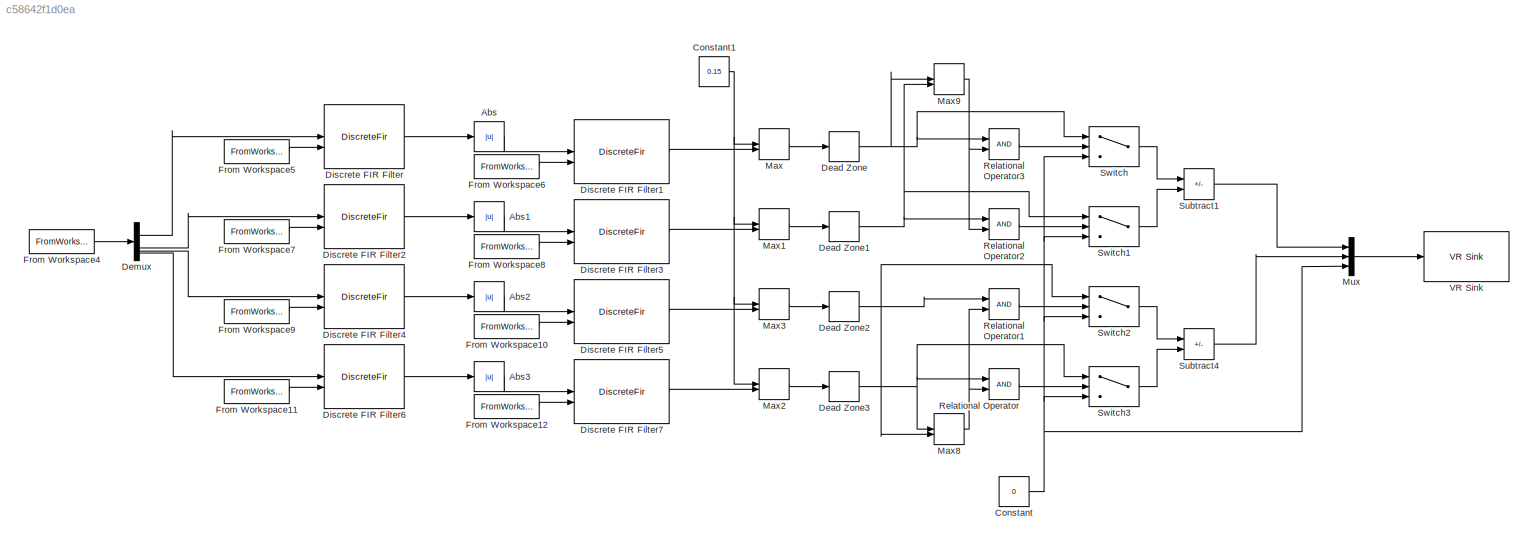
MODEL slx_c58642f1d0ea
KIND model
CONFIG AbsTol = auto
CONFIG EnableMultiTasking = off
CONFIG FixedStep = auto
CONFIG MaxStep = auto
CONFIG MinStep = auto
CONFIG RelTol = 1e-3
CONFIG SampleTimeConstraint = Unconstrained
CONFIG SolverName = VariableStepAuto
CONFIG StartTime = 0.0
CONFIG StopTime = 30
BLOCK [Abs] Abs
  SaturateOnIntegerOverflow = off
BLOCK [Abs] Abs1
  SaturateOnIntegerOverflow = off
BLOCK [Abs] Abs2
  SaturateOnIntegerOverflow = off
BLOCK [Abs] Abs3
  SaturateOnIntegerOverflow = off
BLOCK [Constant] Constant
  OutDataTypeStr = double
  Value = 0
BLOCK [Constant] Constant1
  Value = 0.15
BLOCK [DeadZone] Dead Zone
  LowerValue = -0.05
  UpperValue = 0.05
BLOCK [DeadZone] Dead Zone1
  LowerValue = -0.05
  UpperValue = 0.05
BLOCK [DeadZone] Dead Zone2
  LowerValue = -0.05
  UpperValue = 0.05
BLOCK [DeadZone] Dead Zone3
  LowerValue = -0.05
  UpperValue = 0.05
BLOCK [Demux] Demux
BLOCK [DiscreteFir] Discrete FIR Filter
  CloseFcn = dspblkCoreblockFVToolHelper(gcbh,'close');
  CoefSource = Input port
  CopyFcn = dspblkCoreblockFVToolHelper(gcbh,'copy');
  DeleteFcn = dspblkCoreblockFVToolHelper(gcbh,'close');
  InputPortMap = u0,u1
  LoadFcn = dspblkCoreblockFVToolHelper(gcbh,'load');
  ModelCloseFcn = dspblkCoreblockFVToolHelper(gcbh,'close');
  OutputPortMap = o0
  PostSaveFcn = dspblkCoreblockFVToolHelper(gcbh,'postsave');
  PreSaveFcn = dspblkCoreblockFVToolHelper(gcbh,'presave');
BLOCK [DiscreteFir] Discrete FIR Filter1
  CloseFcn = dspblkCoreblockFVToolHelper(gcbh,'close');
  CoefSource = Input port
  CopyFcn = dspblkCoreblockFVToolHelper(gcbh,'copy');
  DeleteFcn = dspblkCoreblockFVToolHelper(gcbh,'close');
  InputPortMap = u0,u1
  LoadFcn = dspblkCoreblockFVToolHelper(gcbh,'load');
  ModelCloseFcn = dspblkCoreblockFVToolHelper(gcbh,'close');
  OutputPortMap = o0
  PostSaveFcn = dspblkCoreblockFVToolHelper(gcbh,'postsave');
  PreSaveFcn = dspblkCoreblockFVToolHelper(gcbh,'presave');
BLOCK [DiscreteFir] Discrete FIR Filter2
  CloseFcn = dspblkCoreblockFVToolHelper(gcbh,'close');
  CoefSource = Input port
  CopyFcn = dspblkCoreblockFVToolHelper(gcbh,'copy');
  DeleteFcn = dspblkCoreblockFVToolHelper(gcbh,'close');
  InputPortMap = u0,u1
  LoadFcn = dspblkCoreblockFVToolHelper(gcbh,'load');
  ModelCloseFcn = dspblkCoreblockFVToolHelper(gcbh,'close');
  OutputPortMap = o0
  PostSaveFcn = dspblkCoreblockFVToolHelper(gcbh,'postsave');
  PreSaveFcn = dspblkCoreblockFVToolHelper(gcbh,'presave');
BLOCK [DiscreteFir] Discrete FIR Filter3
  CloseFcn = dspblkCoreblockFVToolHelper(gcbh,'close');
  CoefSource = Input port
  CopyFcn = dspblkCoreblockFVToolHelper(gcbh,'copy');
  DeleteFcn = dspblkCoreblockFVToolHelper(gcbh,'close');
  InputPortMap = u0,u1
  LoadFcn = dspblkCoreblockFVToolHelper(gcbh,'load');
  ModelCloseFcn = dspblkCoreblockFVToolHelper(gcbh,'close');
  OutputPortMap = o0
  PostSaveFcn = dspblkCoreblockFVToolHelper(gcbh,'postsave');
  PreSaveFcn = dspblkCoreblockFVToolHelper(gcbh,'presave');
BLOCK [DiscreteFir] Discrete FIR Filter4
  CloseFcn = dspblkCoreblockFVToolHelper(gcbh,'close');
  CoefSource = Input port
  CopyFcn = dspblkCoreblockFVToolHelper(gcbh,'copy');
  DeleteFcn = dspblkCoreblockFVToolHelper(gcbh,'close');
  InputPortMap = u0,u1
  LoadFcn = dspblkCoreblockFVToolHelper(gcbh,'load');
  ModelCloseFcn = dspblkCoreblockFVToolHelper(gcbh,'close');
  OutputPortMap = o0
  PostSaveFcn = dspblkCoreblockFVToolHelper(gcbh,'postsave');
  PreSaveFcn = dspblkCoreblockFVToolHelper(gcbh,'presave');
BLOCK [DiscreteFir] Discrete FIR Filter5
  CloseFcn = dspblkCoreblockFVToolHelper(gcbh,'close');
  CoefSource = Input port
  CopyFcn = dspblkCoreblockFVToolHelper(gcbh,'copy');
  DeleteFcn = dspblkCoreblockFVToolHelper(gcbh,'close');
  InputPortMap = u0,u1
  LoadFcn = dspblkCoreblockFVToolHelper(gcbh,'load');
  ModelCloseFcn = dspblkCoreblockFVToolHelper(gcbh,'close');
  OutputPortMap = o0
  PostSaveFcn = dspblkCoreblockFVToolHelper(gcbh,'postsave');
  PreSaveFcn = dspblkCoreblockFVToolHelper(gcbh,'presave');
BLOCK [DiscreteFir] Discrete FIR Filter6
  CloseFcn = dspblkCoreblockFVToolHelper(gcbh,'close');
  CoefSource = Input port
  CopyFcn = dspblkCoreblockFVToolHelper(gcbh,'copy');
  DeleteFcn = dspblkCoreblockFVToolHelper(gcbh,'close');
  InputPortMap = u0,u1
  LoadFcn = dspblkCoreblockFVToolHelper(gcbh,'load');
  ModelCloseFcn = dspblkCoreblockFVToolHelper(gcbh,'close');
  OutputPortMap = o0
  PostSaveFcn = dspblkCoreblockFVToolHelper(gcbh,'postsave');
  PreSaveFcn = dspblkCoreblockFVToolHelper(gcbh,'presave');
BLOCK [DiscreteFir] Discrete FIR Filter7
  CloseFcn = dspblkCoreblockFVToolHelper(gcbh,'close');
  CoefSource = Input port
  CopyFcn = dspblkCoreblockFVToolHelper(gcbh,'copy');
  DeleteFcn = dspblkCoreblockFVToolHelper(gcbh,'close');
  InputPortMap = u0,u1
  LoadFcn = dspblkCoreblockFVToolHelper(gcbh,'load');
  ModelCloseFcn = dspblkCoreblockFVToolHelper(gcbh,'close');
  OutputPortMap = o0
  PostSaveFcn = dspblkCoreblockFVToolHelper(gcbh,'postsave');
  PreSaveFcn = dspblkCoreblockFVToolHelper(gcbh,'presave');
BLOCK [FromWorkspace] From Workspace10
  VariableName = lp
BLOCK [FromWorkspace] From Workspace11
  VariableName = bp
BLOCK [FromWorkspace] From Workspace12
  VariableName = lp
BLOCK [FromWorkspace] From Workspace4
  SampleTime = -1
  VariableName = [ES2_emg.time, ES2_emg.signals]
BLOCK [FromWorkspace] From Workspace5
  VariableName = bp
BLOCK [FromWorkspace] From Workspace6
  VariableName = lp
BLOCK [FromWorkspace] From Workspace7
  VariableName = bp
BLOCK [FromWorkspace] From Workspace8
  VariableName = lp
BLOCK [FromWorkspace] From Workspace9
  VariableName = bp
BLOCK [MinMax] Max
  Inputs = 2
BLOCK [MinMax] Max1
  Inputs = 2
BLOCK [MinMax] Max2
  Inputs = 2
BLOCK [MinMax] Max3
  Inputs = 2
BLOCK [MinMax] Max8
  Function = max
  Inputs = 2
BLOCK [MinMax] Max9
  Function = max
  Inputs = 2
BLOCK [Mux] Mux
  DisplayOption = bar
  Inputs = 3
BLOCK [RelationalOperator] Relational Operator
  InputSameDT = off
  OutDataTypeStr = boolean
  RndMeth = Simplest
BLOCK [RelationalOperator] Relational Operator1
  InputSameDT = off
  OutDataTypeStr = boolean
  RndMeth = Simplest
BLOCK [RelationalOperator] Relational Operator2
  InputSameDT = off
  OutDataTypeStr = boolean
  RndMeth = Simplest
BLOCK [RelationalOperator] Relational Operator3
  InputSameDT = off
  OutDataTypeStr = boolean
  RndMeth = Simplest
BLOCK [Sum] Subtract1
  IconShape = rectangular
  Inputs = +-
  OutDataTypeStr = double
BLOCK [Sum] Subtract4
  IconShape = rectangular
  Inputs = +-
  OutDataTypeStr = double
BLOCK [Switch] Switch
  Criteria = u2 > Threshold
  InputSameDT = off
  SaturateOnIntegerOverflow = off
BLOCK [Switch] Switch1
  Criteria = u2 > Threshold
  InputSameDT = off
  SaturateOnIntegerOverflow = off
BLOCK [Switch] Switch2
  Criteria = u2 > Threshold
  InputSameDT = off
  SaturateOnIntegerOverflow = off
BLOCK [Switch] Switch3
  Criteria = u2 > Threshold
  InputSameDT = off
  SaturateOnIntegerOverflow = off
BLOCK [Reference] VR Sink  REF=vrlib/VR Sink
  InstantiateOnLoad = on
  SourceBlock = vrlib/VR Sink
  SourceType = Virtual Reality Sink
LINE Abs1:1 -> Discrete FIR Filter3:1
LINE Abs2:1 -> Discrete FIR Filter5:1
LINE Abs3:1 -> Discrete FIR Filter7:1
LINE Abs:1 -> Discrete FIR Filter1:1
NET Constant1:1 -> Max1:1, Max2:1, Max3:1, Max:1
NET Constant:1 -> Mux:3, Switch1:3, Switch2:3, Switch3:3, Switch:3
NET Dead Zone1:1 -> Max9:2, Relational Operator2:1, Switch1:1
NET Dead Zone2:1 -> Max8:2, Relational Operator1:1, Switch2:1
NET Dead Zone3:1 -> Max8:1, Relational Operator:1, Switch3:1
NET Dead Zone:1 -> Max9:1, Relational Operator3:1, Switch:1
LINE Demux:1 -> Discrete FIR Filter:1
LINE Demux:2 -> Discrete FIR Filter2:1
LINE Demux:3 -> Discrete FIR Filter4:1
LINE Demux:4 -> Discrete FIR Filter6:1
LINE Discrete FIR Filter1:1 -> Max:2
LINE Discrete FIR Filter2:1 -> Abs1:1
LINE Discrete FIR Filter3:1 -> Max1:2
LINE Discrete FIR Filter4:1 -> Abs2:1
LINE Discrete FIR Filter5:1 -> Max3:2
LINE Discrete FIR Filter6:1 -> Abs3:1
LINE Discrete FIR Filter7:1 -> Max2:2
LINE Discrete FIR Filter:1 -> Abs:1
LINE From Workspace10:1 -> Discrete FIR Filter5:2
LINE From Workspace11:1 -> Discrete FIR Filter6:2
LINE From Workspace12:1 -> Discrete FIR Filter7:2
LINE From Workspace4:1 -> Demux:1
LINE From Workspace5:1 -> Discrete FIR Filter:2
LINE From Workspace6:1 -> Discrete FIR Filter1:2
LINE From Workspace7:1 -> Discrete FIR Filter2:2
LINE From Workspace8:1 -> Discrete FIR Filter3:2
LINE From Workspace9:1 -> Discrete FIR Filter4:2
LINE Max1:1 -> Dead Zone1:1
LINE Max2:1 -> Dead Zone3:1
LINE Max3:1 -> Dead Zone2:1
NET Max8:1 -> Relational Operator1:2, Relational Operator:2
NET Max9:1 -> Relational Operator2:2, Relational Operator3:2
LINE Max:1 -> Dead Zone:1
LINE Mux:1 -> VR Sink:1
LINE Relational Operator1:1 -> Switch2:2
LINE Relational Operator2:1 -> Switch1:2
LINE Relational Operator3:1 -> Switch:2
LINE Relational Operator:1 -> Switch3:2
LINE Subtract1:1 -> Mux:1
LINE Subtract4:1 -> Mux:2
LINE Switch1:1 -> Subtract1:2
LINE Switch2:1 -> Subtract4:1
LINE Switch3:1 -> Subtract4:2
LINE Switch:1 -> Subtract1:1
note: NET lines group one-source signal fan-out (src -> all destinations, sorted); 1:1 wires keep LINE
